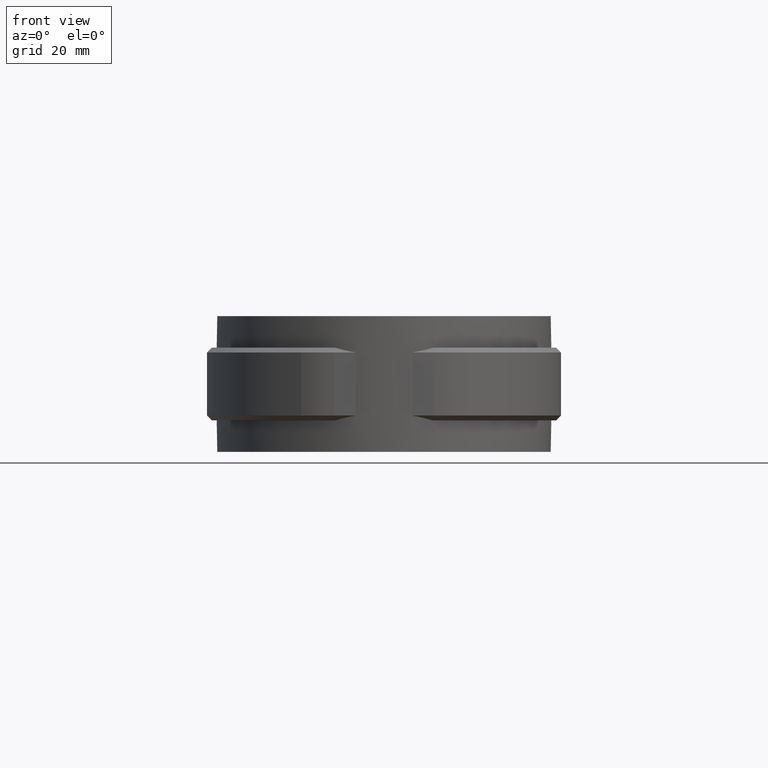
[diagram: clean part render]
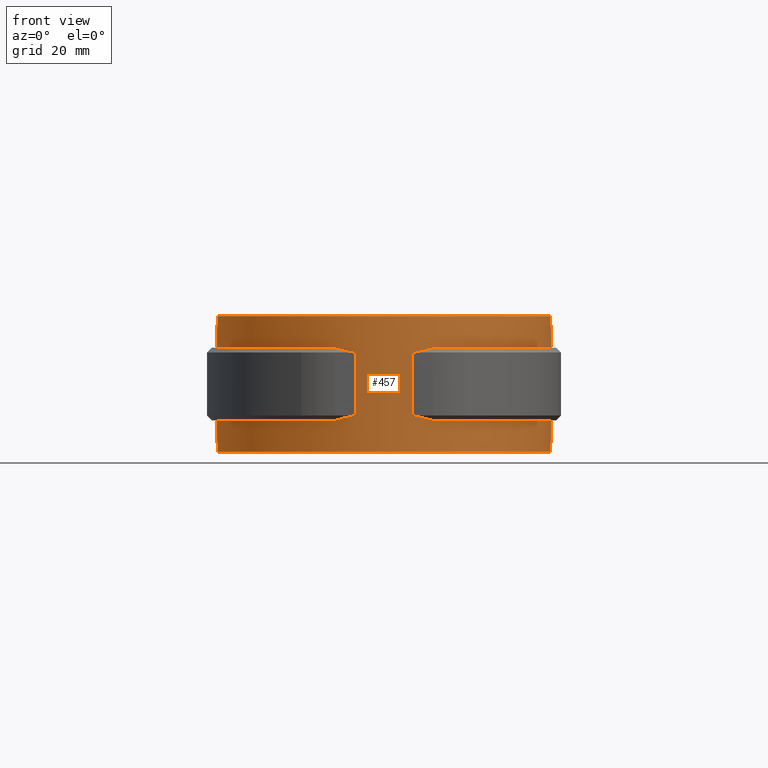
[diagram: same view with one face highlighted and labeled with its STEP entity id]
A machine part, front view. The second image highlights one B-rep face of the part: STEP entity #457.
In plain terms, the highlighted cylindrical surface (partial cylindrical patch) has radius 34.495 mm, axis along (0, 0, 1).
Its self-contained STEP definition (entity closure, byte-faithful):
#457 = ADVANCED_FACE( '', ( #905 ), #906, .T. );
#905 = FACE_OUTER_BOUND( '', #2009, .T. );
#906 = CYLINDRICAL_SURFACE( '', #2010, 34.4950000000000 );
#2009 = EDGE_LOOP( '', ( #4557, #4558, #4559, #4560, #4561, #4562, #4563, #4564, #4565, #4566, #4567, #4568, #4569, #4570, #4571, #4572 ) );
#2010 = AXIS2_PLACEMENT_3D( '', #4573, #4574, #4575 );
#4557 = ORIENTED_EDGE( '', *, *, #7123, .F. );
#4558 = ORIENTED_EDGE( '', *, *, #7111, .T. );
#4559 = ORIENTED_EDGE( '', *, *, #7124, .T. );
#4560 = ORIENTED_EDGE( '', *, *, #7125, .T. );
#4561 = ORIENTED_EDGE( '', *, *, #7126, .T. );
#4562 = ORIENTED_EDGE( '', *, *, #7127, .T. );
#4563 = ORIENTED_EDGE( '', *, *, #7128, .F. );
#4564 = ORIENTED_EDGE( '', *, *, #7038, .F. );
#4565 = ORIENTED_EDGE( '', *, *, #7129, .F. );
#4566 = ORIENTED_EDGE( '', *, *, #7104, .T. );
#4567 = ORIENTED_EDGE( '', *, *, #7081, .F. );
#4568 = ORIENTED_EDGE( '', *, *, #7130, .T. );
#4569 = ORIENTED_EDGE( '', *, *, #6962, .T. );
#4570 = ORIENTED_EDGE( '', *, *, #7034, .F. );
#4571 = ORIENTED_EDGE( '', *, *, #7116, .T. );
#4572 = ORIENTED_EDGE( '', *, *, #7131, .T. );
#4573 = CARTESIAN_POINT( '', ( 0.000000000000000, 0.000000000000000, -26.5000000000000 ) );
#4574 = DIRECTION( '', ( 0.000000000000000, 0.000000000000000, 1.00000000000000 ) );
#4575 = DIRECTION( '', ( -1.00000000000000, 6.07153216591883E-017, 0.000000000000000 ) );
#6962 = EDGE_CURVE( '', #8003, #8004, #8005, .T. );
#7034 = EDGE_CURVE( '', #8135, #8004, #8137, .F. );
#7038 = EDGE_CURVE( '', #8142, #8131, #8144, .F. );
#7081 = EDGE_CURVE( '', #8209, #8211, #8212, .F. );
#7104 = EDGE_CURVE( '', #8244, #8211, #8245, .T. );
#7111 = EDGE_CURVE( '', #8257, #8255, #8258, .F. );
#7116 = EDGE_CURVE( '', #8135, #8264, #8266, .T. );
#7123 = EDGE_CURVE( '', #8257, #8278, #8279, .T. );
#7124 = EDGE_CURVE( '', #8255, #8280, #8281, .F. );
#7125 = EDGE_CURVE( '', #8280, #8282, #8283, .T. );
#7126 = EDGE_CURVE( '', #8282, #8284, #8285, .T. );
#7127 = EDGE_CURVE( '', #8284, #8286, #8287, .F. );
#7128 = EDGE_CURVE( '', #8131, #8286, #8288, .T. );
#7129 = EDGE_CURVE( '', #8244, #8142, #8289, .T. );
#7130 = EDGE_CURVE( '', #8209, #8003, #8290, .F. );
#7131 = EDGE_CURVE( '', #8264, #8278, #8291, .F. );
#8003 = VERTEX_POINT( '', #10573 );
#8004 = VERTEX_POINT( '', #10574 );
#8005 = CIRCLE( '', #10575, 34.4950000000000 );
#8131 = VERTEX_POINT( '', #11328 );
#8135 = VERTEX_POINT( '', #11334 );
#8137 = LINE( '', #11337, #11338 );
#8142 = VERTEX_POINT( '', #11347 );
#8144 = LINE( '', #11350, #11351 );
#8209 = VERTEX_POINT( '', #11613 );
#8211 = VERTEX_POINT( '', #11616 );
#8212 = LINE( '', #11617, #11618 );
#8244 = VERTEX_POINT( '', #11814 );
#8245 = ELLIPSE( '', #11815, 48.7832968340597, 34.4950000000000 );
#8255 = VERTEX_POINT( '', #11828 );
#8257 = VERTEX_POINT( '', #11831 );
#8258 = ELLIPSE( '', #11832, 48.7832968340597, 34.4950000000000 );
#8264 = VERTEX_POINT( '', #11844 );
#8266 = CIRCLE( '', #11847, 34.4950000000000 );
#8278 = VERTEX_POINT( '', #11862 );
#8279 = CIRCLE( '', #11863, 34.4950000000000 );
#8280 = VERTEX_POINT( '', #11864 );
#8281 = LINE( '', #11865, #11866 );
#8282 = VERTEX_POINT( '', #11867 );
#8283 = ELLIPSE( '', #11868, 48.7832968340597, 34.4950000000000 );
#8284 = VERTEX_POINT( '', #11869 );
#8285 = CIRCLE( '', #11870, 34.4950000000000 );
#8286 = VERTEX_POINT( '', #11871 );
#8287 = LINE( '', #11872, #11873 );
#8288 = CIRCLE( '', #11874, 34.4950000000000 );
#8289 = CIRCLE( '', #11875, 34.4950000000000 );
#8290 = ELLIPSE( '', #11876, 48.7832968340597, 34.4950000000000 );
#8291 = LINE( '', #11877, #11878 );
#10573 = CARTESIAN_POINT( '', ( -10.0451493269140, -33.0000000000000, -20.0000000000000 ) );
#10574 = CARTESIAN_POINT( '', ( -6.09999999999997, 33.9513626383390, -20.0000000000000 ) );
#10575 = AXIS2_PLACEMENT_3D( '', #13597, #13598, #13599 );
#11328 = CARTESIAN_POINT( '', ( -6.09999999999997, 33.9513626383390, 1.50000000000000 ) );
#11334 = CARTESIAN_POINT( '', ( -6.09999999999997, 33.9513626383390, -26.5000000000000 ) );
#11337 = CARTESIAN_POINT( '', ( -6.09999999999997, 33.9513626383390, -26.5000000000000 ) );
#11338 = VECTOR( '', #13661, 1000.00000000000 );
#11347 = CARTESIAN_POINT( '', ( -6.09999999999997, 33.9513626383390, -5.00000000000000 ) );
#11350 = CARTESIAN_POINT( '', ( -6.09999999999997, 33.9513626383390, -26.5000000000000 ) );
#11351 = VECTOR( '', #13664, 1000.00000000000 );
#11613 = CARTESIAN_POINT( '', ( -5.82280216047222, -34.0000000000000, -19.0000000000000 ) );
#11616 = CARTESIAN_POINT( '', ( -5.82280216047220, -34.0000000000000, -5.99999999999999 ) );
#11617 = CARTESIAN_POINT( '', ( -5.82280216047221, -34.0000000000000, -26.5000000000000 ) );
#11618 = VECTOR( '', #13719, 1000.00000000000 );
#11814 = CARTESIAN_POINT( '', ( -10.0451493269140, -33.0000000000000, -5.00000000000000 ) );
#11815 = AXIS2_PLACEMENT_3D( '', #13737, #13738, #13739 );
#11828 = CARTESIAN_POINT( '', ( 5.82280216047221, -34.0000000000000, -19.0000000000000 ) );
#11831 = CARTESIAN_POINT( '', ( 10.0451493269140, -33.0000000000000, -20.0000000000000 ) );
#11832 = AXIS2_PLACEMENT_3D( '', #13750, #13751, #13752 );
#11844 = CARTESIAN_POINT( '', ( 6.10000000000003, 33.9513626383390, -26.5000000000000 ) );
#11847 = AXIS2_PLACEMENT_3D( '', #13756, #13757, #13758 );
#11862 = CARTESIAN_POINT( '', ( 6.10000000000003, 33.9513626383390, -20.0000000000000 ) );
#11863 = AXIS2_PLACEMENT_3D( '', #13771, #13772, #13773 );
#11864 = CARTESIAN_POINT( '', ( 5.82280216047221, -34.0000000000000, -6.00000000000000 ) );
#11865 = CARTESIAN_POINT( '', ( 5.82280216047220, -34.0000000000000, -26.5000000000000 ) );
#11866 = VECTOR( '', #13774, 1000.00000000000 );
#11867 = CARTESIAN_POINT( '', ( 10.0451493269140, -33.0000000000000, -5.00000000000000 ) );
#11868 = AXIS2_PLACEMENT_3D( '', #13775, #13776, #13777 );
#11869 = CARTESIAN_POINT( '', ( 6.10000000000003, 33.9513626383390, -5.00000000000000 ) );
#11870 = AXIS2_PLACEMENT_3D( '', #13778, #13779, #13780 );
#11871 = CARTESIAN_POINT( '', ( 6.10000000000003, 33.9513626383390, 1.50000000000000 ) );
#11872 = CARTESIAN_POINT( '', ( 6.10000000000003, 33.9513626383390, -26.5000000000000 ) );
#11873 = VECTOR( '', #13781, 1000.00000000000 );
#11874 = AXIS2_PLACEMENT_3D( '', #13782, #13783, #13784 );
#11875 = AXIS2_PLACEMENT_3D( '', #13785, #13786, #13787 );
#11876 = AXIS2_PLACEMENT_3D( '', #13788, #13789, #13790 );
#11877 = CARTESIAN_POINT( '', ( 6.10000000000003, 33.9513626383390, -26.5000000000000 ) );
#11878 = VECTOR( '', #13791, 1000.00000000000 );
#13597 = CARTESIAN_POINT( '', ( 0.000000000000000, 0.000000000000000, -20.0000000000000 ) );
#13598 = DIRECTION( '', ( 0.000000000000000, 0.000000000000000, -1.00000000000000 ) );
#13599 = DIRECTION( '', ( -1.00000000000000, 0.000000000000000, 0.000000000000000 ) );
#13661 = DIRECTION( '', ( 0.000000000000000, 0.000000000000000, -1.00000000000000 ) );
#13664 = DIRECTION( '', ( 0.000000000000000, 0.000000000000000, -1.00000000000000 ) );
#13719 = DIRECTION( '', ( 0.000000000000000, 0.000000000000000, -1.00000000000000 ) );
#13737 = CARTESIAN_POINT( '', ( 0.000000000000000, 0.000000000000000, 27.9999999999997 ) );
#13738 = DIRECTION( '', ( -1.96261557335471E-017, -0.707106781186544, 0.707106781186551 ) );
#13739 = DIRECTION( '', ( -1.96261557335473E-017, -0.707106781186551, -0.707106781186544 ) );
#13750 = CARTESIAN_POINT( '', ( 0.000000000000000, 0.000000000000000, -52.9999999999998 ) );
#13751 = DIRECTION( '', ( 1.96261557335471E-017, 0.707106781186545, 0.707106781186550 ) );
#13752 = DIRECTION( '', ( 1.96261557335472E-017, 0.707106781186550, -0.707106781186545 ) );
#13756 = CARTESIAN_POINT( '', ( 0.000000000000000, 0.000000000000000, -26.5000000000000 ) );
#13757 = DIRECTION( '', ( 0.000000000000000, 0.000000000000000, 1.00000000000000 ) );
#13758 = DIRECTION( '', ( 1.00000000000000, 0.000000000000000, 0.000000000000000 ) );
#13771 = CARTESIAN_POINT( '', ( 0.000000000000000, 0.000000000000000, -20.0000000000000 ) );
#13772 = DIRECTION( '', ( 0.000000000000000, 0.000000000000000, 1.00000000000000 ) );
#13773 = DIRECTION( '', ( 1.00000000000000, 0.000000000000000, 0.000000000000000 ) );
#13774 = DIRECTION( '', ( 0.000000000000000, 0.000000000000000, -1.00000000000000 ) );
#13775 = CARTESIAN_POINT( '', ( 0.000000000000000, 0.000000000000000, 27.9999999999998 ) );
#13776 = DIRECTION( '', ( -1.96261557335471E-017, -0.707106781186545, 0.707106781186550 ) );
#13777 = DIRECTION( '', ( -1.96261557335472E-017, -0.707106781186550, -0.707106781186545 ) );
#13778 = CARTESIAN_POINT( '', ( 0.000000000000000, 0.000000000000000, -5.00000000000000 ) );
#13779 = DIRECTION( '', ( 0.000000000000000, 0.000000000000000, 1.00000000000000 ) );
#13780 = DIRECTION( '', ( 1.00000000000000, 0.000000000000000, 0.000000000000000 ) );
#13781 = DIRECTION( '', ( 0.000000000000000, 0.000000000000000, -1.00000000000000 ) );
#13782 = CARTESIAN_POINT( '', ( 0.000000000000000, 0.000000000000000, 1.50000000000000 ) );
#13783 = DIRECTION( '', ( 0.000000000000000, 0.000000000000000, 1.00000000000000 ) );
#13784 = DIRECTION( '', ( 1.00000000000000, 0.000000000000000, 0.000000000000000 ) );
#13785 = CARTESIAN_POINT( '', ( 0.000000000000000, 0.000000000000000, -5.00000000000000 ) );
#13786 = DIRECTION( '', ( 0.000000000000000, 0.000000000000000, -1.00000000000000 ) );
#13787 = DIRECTION( '', ( -1.00000000000000, 0.000000000000000, 0.000000000000000 ) );
#13788 = CARTESIAN_POINT( '', ( 0.000000000000000, 0.000000000000000, -52.9999999999998 ) );
#13789 = DIRECTION( '', ( 1.96261557335471E-017, 0.707106781186545, 0.707106781186550 ) );
#13790 = DIRECTION( '', ( 1.96261557335472E-017, 0.707106781186550, -0.707106781186545 ) );
#13791 = DIRECTION( '', ( 0.000000000000000, 0.000000000000000, -1.00000000000000 ) );